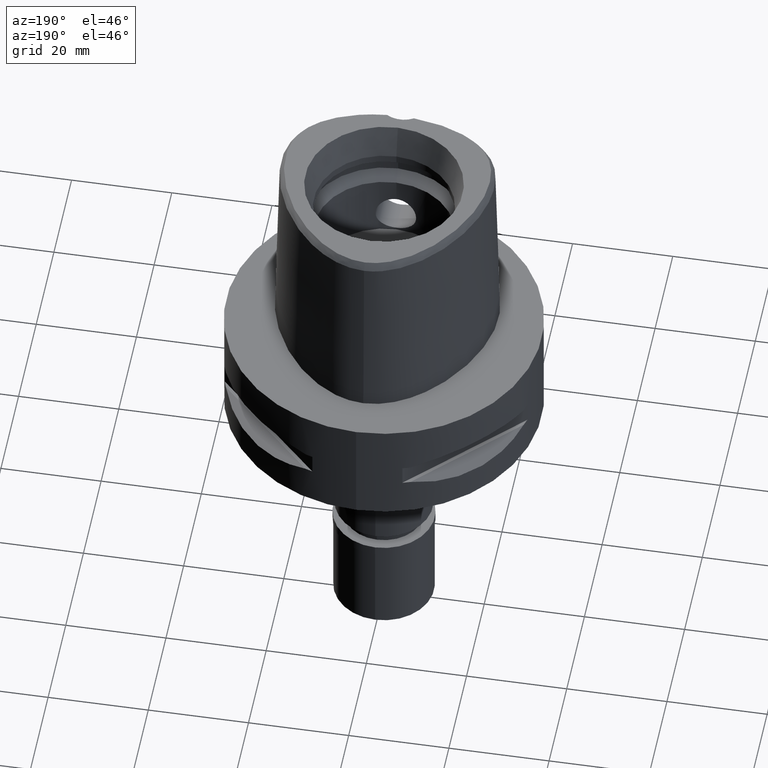
[diagram: clean part render]
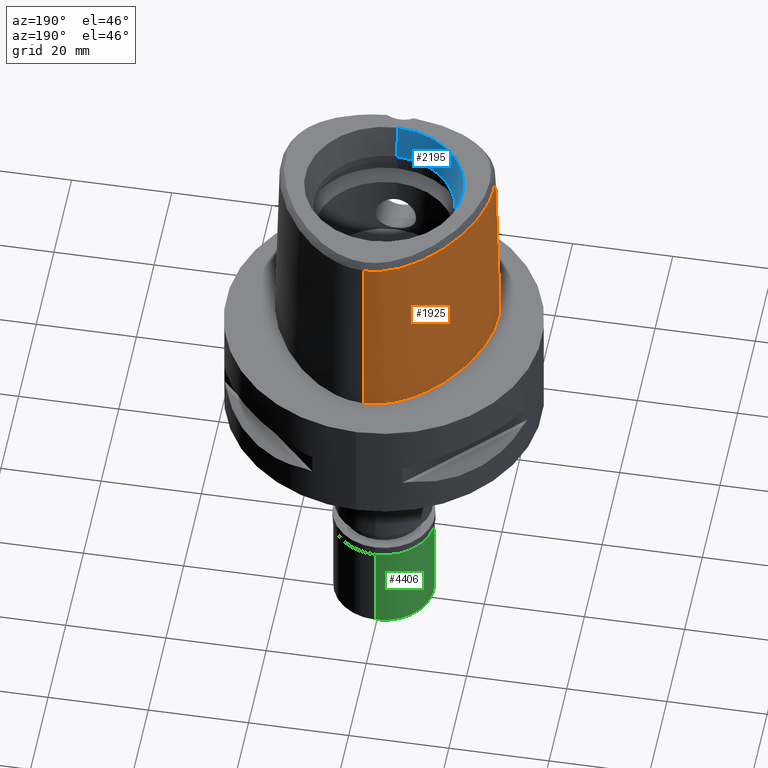
[diagram: same view with three faces highlighted in distinct colors, each labeled with its STEP entity id]
A machine part, auxiliary view with three faces highlighted in distinct colors.
Their STEP definitions:

[orange] entity #1925 — the highlighted face is a freeform B-spline surface patch.
#27 = CARTESIAN_POINT ( 'NONE',  ( -1.853278688364999871, -20.08023918593000090, 24.59140458107000171 ) ) ;
#36 = CARTESIAN_POINT ( 'NONE',  ( 0.0000000000000000000, -20.18628283968999781, 19.55000000000000071 ) ) ;
#47 = CARTESIAN_POINT ( 'NONE',  ( -3.762869731536669260, -20.12247555764862028, 14.00220521679823094 ) ) ;
#49 = CARTESIAN_POINT ( 'NONE',  ( -4.757642277158728561, 21.67478330407271514, 36.52186244848003582 ) ) ;
#69 = CARTESIAN_POINT ( 'NONE',  ( -4.049869973556383229, -20.05130082554616422, 15.54461703030602315 ) ) ;
#96 = CARTESIAN_POINT ( 'NONE',  ( -3.925548520621262139, -20.09219379504578740, 14.49438712539528318 ) ) ;
#120 = CARTESIAN_POINT ( 'NONE',  ( -3.038214366441517988, -20.22289421842112489, 12.82055521037658430 ) ) ;
#181 = VERTEX_POINT ( 'NONE', #536 ) ;
#189 = CARTESIAN_POINT ( 'NONE',  ( -14.42198652155999916, 15.65278600381999752, -0.7304377598339000244 ) ) ;
#216 = CARTESIAN_POINT ( 'NONE',  ( -18.08416038491999700, 10.44089487314000131, -0.7304377598339000244 ) ) ;
#239 = CARTESIAN_POINT ( 'NONE',  ( -17.25769840289000001, 9.963736469872001678, 37.25232575153000170 ) ) ;
#262 = CARTESIAN_POINT ( 'NONE',  ( 0.7234356452536000459, 23.47140592868999676, -0.7304377598339000244 ) ) ;
#265 = CARTESIAN_POINT ( 'NONE',  ( -21.62788395401999963, -4.104079498751000088, 24.59140458107000171 ) ) ;
#284 = CARTESIAN_POINT ( 'NONE',  ( -18.58171406734000186, -14.18198046689000158, -0.7304377598339000244 ) ) ;
#285 = CARTESIAN_POINT ( 'NONE',  ( -22.24453906986831342, -4.100468750050696443, 3.459377806728971411E-07 ) ) ;
#304 = CARTESIAN_POINT ( 'NONE',  ( -2.797619229957165388, -20.10241173800437764, 18.42863864459393142 ) ) ;
#309 = CARTESIAN_POINT ( 'NONE',  ( 0.6718639819605999319, -20.05378883203000129, 24.59140458107000171 ) ) ;
#342 = CARTESIAN_POINT ( 'NONE',  ( -1.531405610645092619, -20.16033321293324931, 19.24931070735947358 ) ) ;
#385 = CARTESIAN_POINT ( 'NONE',  ( -2.919852893003461958, -20.23621320773177246, 12.69332253371329067 ) ) ;
#401 = CARTESIAN_POINT ( 'NONE',  ( 6.819050439105700543E-09, -19.98212988583619065, 27.71666688228206610 ) ) ;
#408 = CARTESIAN_POINT ( 'NONE',  ( -1.680927265745976618, -20.33952493926734206, 11.81518855684048752 ) ) ;
#409 = EDGE_CURVE ( 'NONE', #2981, #2292, #1281, .T. ) ;
#437 = CARTESIAN_POINT ( 'NONE',  ( -3.921184627122715316, -20.04104756848809643, 16.54728570683239752 ) ) ;
#439 = CARTESIAN_POINT ( 'NONE',  ( -1.479182330943000172E-11, 22.56201468012000078, 36.52186680743999858 ) ) ;
#450 = EDGE_LOOP ( 'NONE', ( #1989, #1747, #4038, #4217, #3665, #1895, #1190, #470 ) ) ;
#459 = CARTESIAN_POINT ( 'NONE',  ( -3.998376839061489996, -20.04197868732341803, 16.15801345790673693 ) ) ;
#470 = ORIENTED_EDGE ( 'NONE', *, *, #3107, .T. ) ;
#484 = CARTESIAN_POINT ( 'NONE',  ( -1.596117655116225942, -20.34441856857911546, 11.77773549791970353 ) ) ;
#487 = CARTESIAN_POINT ( 'NONE',  ( -20.67704215115622191, -8.734985316449101589, 36.52186244848003582 ) ) ;
#536 = CARTESIAN_POINT ( 'NONE',  ( -1.479182330943000172E-11, 22.56201468012000078, 36.52186680743999858 ) ) ;
#552 = CARTESIAN_POINT ( 'NONE',  ( -0.5985508168393000039, 23.20171274540999562, 11.93048341062000084 ) ) ;
#575 = CARTESIAN_POINT ( 'NONE',  ( -0.6149727127929999204, 23.51889465129999834, -0.7304377598339000244 ) ) ;
#576 = CARTESIAN_POINT ( 'NONE',  ( -2.564517725179087826, 23.29328124148293355, 3.459377806728971411E-07 ) ) ;
#597 = CARTESIAN_POINT ( 'NONE',  ( -2.438150592735999656, 22.68791634200999852, 24.59140458107000171 ) ) ;
#621 = CARTESIAN_POINT ( 'NONE',  ( -20.36546124687000159, -11.75800453307999938, -0.7304377598339000244 ) ) ;
#646 = CARTESIAN_POINT ( 'NONE',  ( -19.66427014789000083, -12.83600704790999991, -0.7304377598339000244 ) ) ;
#661 = CARTESIAN_POINT ( 'NONE',  ( -1.488598210213442075, -20.16175034823961809, 19.26657871304125180 ) ) ;
#683 = CARTESIAN_POINT ( 'NONE',  ( -2.851801149372419353, -20.09935072000362055, 18.37572088573532980 ) ) ;
#691 = CARTESIAN_POINT ( 'NONE',  ( -14.52531262031000026, -16.95413745994000010, 11.93048341062000084 ) ) ;
#711 = CARTESIAN_POINT ( 'NONE',  ( 0.6779535336779000110, -20.37023519194999821, 11.93048341062000084 ) ) ;
#727 = CARTESIAN_POINT ( 'NONE',  ( 0.6657744302432999639, -19.73734247210999726, 37.25232575153000170 ) ) ;
#736 = EDGE_CURVE ( 'NONE', #4610, #181, #4188, .T. ) ;
#749 = CARTESIAN_POINT ( 'NONE',  ( 0.6840430853952000900, -20.68668155186999869, -0.7304377598339000244 ) ) ;
#769 = CARTESIAN_POINT ( 'NONE',  ( -2.886300266832447114, -20.23990940497640523, 12.65889672335314842 ) ) ;
#771 = CARTESIAN_POINT ( 'NONE',  ( -21.32871527670028300, -4.105831244393650437, 36.52186244848003582 ) ) ;
#796 = CARTESIAN_POINT ( 'NONE',  ( -18.90964971338317113, -12.28759719904896031, 36.52186244848003582 ) ) ;
#817 = CARTESIAN_POINT ( 'NONE',  ( -1.559114742816756660, -20.34646573754459808, 11.76212138692104148 ) ) ;
#842 = CARTESIAN_POINT ( 'NONE',  ( -1.641525461541228470, -20.34184561437434624, 11.79739200675999022 ) ) ;
#851 = CARTESIAN_POINT ( 'NONE',  ( -3.704239276368590961, -19.64128040965313460, 33.37395414949332917 ) ) ;
#869 = CARTESIAN_POINT ( 'NONE',  ( -3.843226529735412456, -20.04326967009407667, 16.80669536902188099 ) ) ;
#905 = DIRECTION ( 'NONE',  ( 2.208678029385959910E-12, 0.02499051290944955331, -0.9996876883629820520 ) ) ;
#910 = CARTESIAN_POINT ( 'NONE',  ( -20.36913766326999919, -10.35391839962999860, 24.59140458107000171 ) ) ;
#926 = B_SPLINE_CURVE_WITH_KNOTS ( 'NONE', 3,
 ( #1219, #3115, #851, #1532 ),
 .UNSPECIFIED., .F., .F.,
 ( 4, 4 ),
 ( 0.0000000000000000000, 1.000000000000000000 ),
 .UNSPECIFIED. ) ;
#935 = CARTESIAN_POINT ( 'NONE',  ( -7.580410841173000236, 21.33037926464000122, -0.7304377598339000244 ) ) ;
#962 = CARTESIAN_POINT ( 'NONE',  ( -21.36961496224000001, -0.3886497988670999937, 24.59140458107000171 ) ) ;
#963 = CARTESIAN_POINT ( 'NONE',  ( -20.93173251419439396, -10.60431640273427334, 3.459377806728971411E-07 ) ) ;
#987 = CARTESIAN_POINT ( 'NONE',  ( -10.75753573945000063, 19.18839675907000242, -0.7304377598339000244 ) ) ;
#1011 = CARTESIAN_POINT ( 'NONE',  ( 0.4823619558380999872, 23.48603818414999722, -0.7304377598339000244 ) ) ;
#1014 = CARTESIAN_POINT ( 'NONE',  ( -17.53318573023000226, 10.12278927095999848, 24.59140458107000171 ) ) ;
#1031 = CARTESIAN_POINT ( 'NONE',  ( -1.541591375113084306, -20.15999082594547076, 19.24513028913992940 ) ) ;
#1051 = CARTESIAN_POINT ( 'NONE',  ( -1.544789731432242519, -20.15988288216005131, 19.24381163818127760 ) ) ;
#1077 = CARTESIAN_POINT ( 'NONE',  ( -6.288476574467999569, -20.00290568970999772, 11.93048341062000084 ) ) ;
#1111 = CARTESIAN_POINT ( 'NONE',  ( -0.2465851577510960457, -20.18628283968999426, 19.54999999999999005 ) ) ;
#1113 = CARTESIAN_POINT ( 'NONE',  ( -17.27359245833573453, 9.972912913898301923, 36.52186244848003582 ) ) ;
#1115 = CARTESIAN_POINT ( 'NONE',  ( -1.886862292337999847, -20.71358860112999878, -0.7304377598339000244 ) ) ;
#1134 = CARTESIAN_POINT ( 'NONE',  ( -2.088594375141250126, -20.31247532857663174, 12.02749352400660676 ) ) ;
#1159 = CARTESIAN_POINT ( 'NONE',  ( -3.719814258556724429, -20.04919641151679244, 17.10180542792554093 ) ) ;
#1183 = CARTESIAN_POINT ( 'NONE',  ( -2.657670403633153544, -20.26493184025507333, 12.42775711742306122 ) ) ;
#1190 = ORIENTED_EDGE ( 'NONE', *, *, #1725, .T. ) ;
#1209 = CARTESIAN_POINT ( 'NONE',  ( -3.867989229626766168, -20.10354487733047790, 14.29757269249988560 ) ) ;
#1219 = CARTESIAN_POINT ( 'NONE',  ( -3.637738201363999835, -19.56971413236999879, 36.52186244848000030 ) ) ;
#1222 = CARTESIAN_POINT ( 'NONE',  ( -3.637738201363999835, -19.56971413236999879, 36.52186244848000030 ) ) ;
#1235 = CARTESIAN_POINT ( 'NONE',  ( -3.756308786277231082, -20.12359860274360557, 13.98582625460690210 ) ) ;
#1243 = CARTESIAN_POINT ( 'NONE',  ( 0.7042335258437000256, 23.15549817335000071, 11.93048341062000084 ) ) ;
#1281 = B_SPLINE_CURVE_WITH_KNOTS ( 'NONE', 3,
 ( #1880, #401, #3381, #36 ),
 .UNSPECIFIED., .F., .F.,
 ( 4, 4 ),
 ( 0.0000000000000000000, 1.000000000000000000 ),
 .UNSPECIFIED. ) ;
#1300 = CARTESIAN_POINT ( 'NONE',  ( -5.105252916852999867, 22.54305024427000248, -0.7304377598339000244 ) ) ;
#1301 = B_SPLINE_CURVE_WITH_KNOTS ( 'NONE', 3,
 ( #2533, #4710, #576, #2510, #2061, #3250, #3657, #2847, #4002, #2135, #285, #3173, #1768, #963, #4023, #3953, #4664, #3276, #4338, #3563, #4759, #1402, #4687 ),
 .UNSPECIFIED., .F., .F.,
 ( 4, 1, 1, 1, 1, 1, 1, 1, 1, 1, 1, 1, 1, 1, 1, 1, 1, 1, 1, 1, 4 ),
 ( 0.0000000000000000000, 0.04166666666767999960, 0.08333333333429000789, 0.1250000000009000023, 0.1666666666676000219, 0.2500000000006999956, 0.3333333333339000282, 0.4166666666672000363, 0.5000000000004000134, 0.5416666666671000607, 0.5833333333336000459, 0.6250000000002999823, 0.6458333333335000148, 0.6666666666668999985, 0.6875000000001999512, 0.7083333333333999837, 0.7500000000001000311, 0.7916666666667000474, 0.8333333333333000637, 0.9166666666666000163, 1.000000000000000000 ),
 .UNSPECIFIED. ) ;
#1326 = CARTESIAN_POINT ( 'NONE',  ( -21.05621893438999592, -0.4440251903631000086, 37.25232575153000170 ) ) ;
#1348 = CARTESIAN_POINT ( 'NONE',  ( -21.44619289701000042, -6.759806545680999257, 24.59140458107000171 ) ) ;
#1370 = CARTESIAN_POINT ( 'NONE',  ( 0.4441906986747999886, 22.53710770256000018, 37.25232575153000170 ) ) ;
#1376 = CARTESIAN_POINT ( 'NONE',  ( -20.09084471766000135, -11.59945460541000095, 11.93048341062000084 ) ) ;
#1401 = CARTESIAN_POINT ( 'NONE',  ( -7.259695404687000142, 20.78233559042000067, 24.59140458107000171 ) ) ;
#1402 = CARTESIAN_POINT ( 'NONE',  ( -2.113823672550860344, -20.67499999135608846, 3.459377806728971411E-07 ) ) ;
#1412 = CARTESIAN_POINT ( 'NONE',  ( 2.041042029990999821E-08, -19.88004246002000031, 31.80000004972000127 ) ) ;
#1476 = CARTESIAN_POINT ( 'NONE',  ( -0.5021874295596131521, -20.18408037859538240, 19.52742716791084732 ) ) ;
#1484 = CARTESIAN_POINT ( 'NONE',  ( -11.02138179061999956, -18.31230451130999981, 24.59140458107000171 ) ) ;
#1500 = CARTESIAN_POINT ( 'NONE',  ( -3.734194145856142732, -20.04849289885567032, 17.06791825620778980 ) ) ;
#1502 = CARTESIAN_POINT ( 'NONE',  ( -17.90324032097040075, -13.53935111955661164, 36.52186244848003582 ) ) ;
#1506 = CARTESIAN_POINT ( 'NONE',  ( -6.344715577052999933, -20.31619965165999631, -0.7304377598339000244 ) ) ;
#1526 = CARTESIAN_POINT ( 'NONE',  ( -3.624911790847527460, -20.05423397138093122, 17.30719681474948146 ) ) ;
#1532 = CARTESIAN_POINT ( 'NONE',  ( -3.736722311398999796, -19.67781602443999844, 31.80000000000000071 ) ) ;
#1550 = CARTESIAN_POINT ( 'NONE',  ( -3.956605912074919296, -20.08538212556008773, 14.62525231714301732 ) ) ;
#1575 = CARTESIAN_POINT ( 'NONE',  ( -3.794740221419424575, -20.11695184498548628, 14.08416059805531262 ) ) ;
#1577 = CARTESIAN_POINT ( 'NONE',  ( -10.91891098965127505, -18.03046406390346590, 36.52186244848003582 ) ) ;
#1634 = CARTESIAN_POINT ( 'NONE',  ( 0.0000000000000000000, -20.18628283968999781, 19.55000000000000071 ) ) ;
#1644 = EDGE_CURVE ( 'NONE', #4610, #4451, #926, .T. ) ;
#1667 = CARTESIAN_POINT ( 'NONE',  ( -4.750826139238999879, 21.65775785507999984, 37.25232575153000170 ) ) ;
#1693 = CARTESIAN_POINT ( 'NONE',  ( -21.99640701793999753, -0.2778990158753000261, -0.7304377598339000244 ) ) ;
#1716 = CARTESIAN_POINT ( 'NONE',  ( -22.07548129310999840, -6.850245535772000238, -0.7304377598339000244 ) ) ;
#1725 = EDGE_CURVE ( 'NONE', #181, #4249, #4228, .T. ) ;
#1742 = CARTESIAN_POINT ( 'NONE',  ( -2.503210899463999883, 22.99958936394000020, 11.93048341062000084 ) ) ;
#1747 = ORIENTED_EDGE ( 'NONE', *, *, #2566, .F. ) ;
#1767 = CARTESIAN_POINT ( 'NONE',  ( -13.69241965850000042, 15.03666380483999987, 37.25232575153000170 ) ) ;
#1768 = CARTESIAN_POINT ( 'NONE',  ( -21.55524825177849024, -8.996025388152483870, 3.459377806728971411E-07 ) ) ;
#1777 = VERTEX_POINT ( 'NONE', #3947 ) ;
#1784 = CARTESIAN_POINT ( 'NONE',  ( -2.857284742604270456, -20.09903790442441007, 18.37026989035636504 ) ) ;
#1788 = EDGE_CURVE ( 'NONE', #3873, #1777, #4705, .T. ) ;
#1804 = CARTESIAN_POINT ( 'NONE',  ( -2.575295375000640430, -20.11439068779958461, 18.62714785978438670 ) ) ;
#1809 = CARTESIAN_POINT ( 'NONE',  ( 0.4439216892547000470, -19.74161834710000107, 37.25232575153000170 ) ) ;
#1821 = CARTESIAN_POINT ( 'NONE',  ( -2.734671533124013010, -20.10590200644962522, 18.48802280310898993 ) ) ;
#1843 = CARTESIAN_POINT ( 'NONE',  ( -2.505990926055988943, -20.11793067865155393, 18.68270516453623031 ) ) ;
#1852 = CARTESIAN_POINT ( 'NONE',  ( -3.736722311398999796, -19.67781602443999844, 31.80000000000000071 ) ) ;
#1866 = CARTESIAN_POINT ( 'NONE',  ( -4.043905190080966605, -20.04716283165503299, 15.73781060819240096 ) ) ;
#1870 = CARTESIAN_POINT ( 'NONE',  ( 0.4479792485152000459, -20.05810146034000141, 24.59140458107000171 ) ) ;
#1880 = CARTESIAN_POINT ( 'NONE',  ( 2.041042029990999821E-08, -19.88004246002000031, 31.80000004972000127 ) ) ;
#1886 = CARTESIAN_POINT ( 'NONE',  ( -3.727469197230223408, -20.04882030233529022, 17.08382935602026009 ) ) ;
#1895 = ORIENTED_EDGE ( 'NONE', *, *, #736, .T. ) ;
#1913 = CARTESIAN_POINT ( 'NONE',  ( -3.367806596831433019, -20.18192081941509031, 13.25016435530160308 ) ) ;
#1925 = ADVANCED_FACE ( 'NONE', ( #3604 ), #3443, .T. ) ;
#1938 = CARTESIAN_POINT ( 'NONE',  ( -3.665886788444425726, -20.13895792717979916, 13.76422644718201838 ) ) ;
#1965 = CARTESIAN_POINT ( 'NONE',  ( -0.5057846355308602826, -20.38876923347999792, 11.44999999999999929 ) ) ;
#1968 = CARTESIAN_POINT ( 'NONE',  ( -21.07430010672997867, -0.4408303445193214043, 36.52186244848003582 ) ) ;
#1989 = ORIENTED_EDGE ( 'NONE', *, *, #1788, .F. ) ;
#2003 = VECTOR ( 'NONE', #2743, 1000.000000000000114 ) ;
#2031 = CARTESIAN_POINT ( 'NONE',  ( -1.479182330943000172E-11, 22.56201468012000078, 36.52186680743999858 ) ) ;
#2036 = CARTESIAN_POINT ( 'NONE',  ( -18.12052898234000153, -13.74516021884999972, 24.59140458107000171 ) ) ;
#2060 = CARTESIAN_POINT ( 'NONE',  ( -21.13154869895999965, -6.714587050636000143, 37.25232575153000170 ) ) ;
#2061 = CARTESIAN_POINT ( 'NONE',  ( -7.571159429969791077, 21.31457030501186267, 3.459377806728971411E-07 ) ) ;
#2087 = CARTESIAN_POINT ( 'NONE',  ( -2.568271206191000022, 23.31126238587999921, -0.7304377598339000244 ) ) ;
#2091 = CARTESIAN_POINT ( 'NONE',  ( -4.467522189395124244, -19.48130287050788567, 36.52186244848003582 ) ) ;
#2099 = CARTESIAN_POINT ( 'NONE',  ( 2.041042029990999821E-08, -19.88004246002000031, 31.80000004972000127 ) ) ;
#2111 = CARTESIAN_POINT ( 'NONE',  ( -7.099337686444999740, 20.50831375331000217, 37.25232575153000170 ) ) ;
#2134 = CARTESIAN_POINT ( 'NONE',  ( -19.40779766750000235, -12.64961925905999962, 11.93048341062000084 ) ) ;
#2135 = CARTESIAN_POINT ( 'NONE',  ( -21.97832646930871903, -0.2810937515131003983, 3.459377806728971411E-07 ) ) ;
#2177 = CARTESIAN_POINT ( 'NONE',  ( -3.268864241398726111, -20.07506891068213761, 17.90555350365073650 ) ) ;
#2183 = CARTESIAN_POINT ( 'NONE',  ( -16.77374381459999952, -15.44292471121999988, 11.93048341062000084 ) ) ;
#2259 = CARTESIAN_POINT ( 'NONE',  ( -3.836467929648135655, -20.10950381298684064, 14.19903930726688657 ) ) ;
#2262 = CARTESIAN_POINT ( 'NONE',  ( -13.70645028111231056, 15.04851272300578380, 36.52186244848003582 ) ) ;
#2284 = CARTESIAN_POINT ( 'NONE',  ( -3.544063161370002213, -20.05881339563959997, 17.46364446448036745 ) ) ;
#2287 = CARTESIAN_POINT ( 'NONE',  ( -19.88562090098154655, 4.345879983791697043, 36.52186244848003582 ) ) ;
#2292 = VERTEX_POINT ( 'NONE', #1634 ) ;
#2313 = CARTESIAN_POINT ( 'NONE',  ( -1.038054083033169483, -20.37481344100646297, 11.54609019373683942 ) ) ;
#2344 = CARTESIAN_POINT ( 'NONE',  ( -2.426701961760798998, -20.28591677970951324, 12.24642837061528944 ) ) ;
#2411 = CARTESIAN_POINT ( 'NONE',  ( -21.31039814733000171, -4.105938498107000179, 37.25232575153000170 ) ) ;
#2436 = CARTESIAN_POINT ( 'NONE',  ( -10.14358063878999872, 18.45723403766999837, 37.25232575153000170 ) ) ;
#2446 = CARTESIAN_POINT ( 'NONE',  ( -3.736722311398999796, -19.67781602443999844, 31.80000000000000071 ) ) ;
#2459 = CARTESIAN_POINT ( 'NONE',  ( -10.55288403922999940, 18.94467585193000048, 11.93048341062000084 ) ) ;
#2485 = CARTESIAN_POINT ( 'NONE',  ( -20.94844326049000216, -10.61175397080999971, -0.7304377598339000244 ) ) ;
#2506 = CARTESIAN_POINT ( 'NONE',  ( 0.4569144510625000044, 22.85341786308999801, 24.59140458107000171 ) ) ;
#2509 = CARTESIAN_POINT ( 'NONE',  ( -13.93560861286000119, 15.24203787116999997, 24.59140458107000171 ) ) ;
#2510 = CARTESIAN_POINT ( 'NONE',  ( -5.098437014055448913, 22.52602538256833142, 3.459377806728971411E-07 ) ) ;
#2530 = CARTESIAN_POINT ( 'NONE',  ( 0.4520368077757999647, -20.37458457356999730, 11.93048341062000084 ) ) ;
#2533 = CARTESIAN_POINT ( 'NONE',  ( 6.589842200291999297E-11, 23.47499999998000320, 1.576886769308999875E-13 ) ) ;
#2550 = CARTESIAN_POINT ( 'NONE',  ( -1.835546471015090830, -20.14908986358940624, 19.11988503337457956 ) ) ;
#2566 = EDGE_CURVE ( 'NONE', #2292, #3873, #4273, .T. ) ;
#2569 = CARTESIAN_POINT ( 'NONE',  ( -1.317010552601458162, -20.16708013202131156, 19.33098337469463956 ) ) ;
#2573 = CARTESIAN_POINT ( 'NONE',  ( -14.21104791656000010, -16.40237691572999879, 37.25232575153000170 ) ) ;
#2587 = CARTESIAN_POINT ( 'NONE',  ( 0.0000000000000000000, -20.18628283968999781, 19.55000000000000071 ) ) ;
#2634 = CARTESIAN_POINT ( 'NONE',  ( -3.772620537503822202, -20.12079984608469374, 14.02678001246963824 ) ) ;
#2658 = CARTESIAN_POINT ( 'NONE',  ( -3.145668487415303360, -20.21028341547467022, 12.94648834099231571 ) ) ;
#2661 = CARTESIAN_POINT ( 'NONE',  ( -14.22011356156464146, -16.41829364185904439, 36.52186244848003582 ) ) ;
#2680 = CARTESIAN_POINT ( 'NONE',  ( -1.814050643340265889, -20.33132821242286781, 11.87847033704504796 ) ) ;
#2709 = CARTESIAN_POINT ( 'NONE',  ( -1.977192395453438722, -20.32050836814658012, 11.96330131670445240 ) ) ;
#2743 = DIRECTION ( 'NONE',  ( -1.017995285158978104E-12, -0.02499051295360945474, -0.9996876883618780463 ) ) ;
#2756 = EDGE_CURVE ( 'NONE', #2981, #4451, #4337, .T. ) ;
#2801 = CARTESIAN_POINT ( 'NONE',  ( -0.5657070249320000910, 22.56734893363000083, 37.25232575153000170 ) ) ;
#2810 = CARTESIAN_POINT ( 'NONE',  ( -1.251533273950275138, -19.88005341379962942, 31.80000012753032124 ) ) ;
#2824 = CARTESIAN_POINT ( 'NONE',  ( -21.57281239455999966, -9.001246195760000290, -0.7304377598339000244 ) ) ;
#2846 = CARTESIAN_POINT ( 'NONE',  ( -14.17879756720999929, 15.44741193750000008, 11.93048341062000084 ) ) ;
#2847 = CARTESIAN_POINT ( 'NONE',  ( -18.06826687773854090, 10.43171874565434898, 3.459377806728971411E-07 ) ) ;
#2869 = CARTESIAN_POINT ( 'NONE',  ( 0.6658292870238999850, 22.52368266267000152, 37.25232575153000170 ) ) ;
#2875 = CARTESIAN_POINT ( 'NONE',  ( -19.81622818843999667, -11.44090467774999986, 24.59140458107000171 ) ) ;
#2896 = CARTESIAN_POINT ( 'NONE',  ( -21.26836739720000224, -8.910752240088001486, 11.93048341062000084 ) ) ;
#2936 = CARTESIAN_POINT ( 'NONE',  ( -2.304133813497709848, -20.12795213471254385, 18.83494799252683194 ) ) ;
#2940 = CARTESIAN_POINT ( 'NONE',  ( -14.68244497218999989, -17.23001773205000120, -0.7304377598339000244 ) ) ;
#2954 = CARTESIAN_POINT ( 'NONE',  ( -2.177750445871723617, -20.13383508342666062, 18.91723245054120284 ) ) ;
#2973 = CARTESIAN_POINT ( 'NONE',  ( -0.8915815459160499890, -20.17747299531153971, 19.45285312132774891 ) ) ;
#2981 = VERTEX_POINT ( 'NONE', #1412 ) ;
#2993 = CARTESIAN_POINT ( 'NONE',  ( -4.047647246277453092, -20.04912797155685666, 15.64168586085738433 ) ) ;
#3021 = CARTESIAN_POINT ( 'NONE',  ( -4.029432876846470002, -20.06721427321517126, 15.01438070517306933 ) ) ;
#3048 = CARTESIAN_POINT ( 'NONE',  ( -3.551080577974869534, -20.15710215592003607, 13.53003663866469708 ) ) ;
#3075 = CARTESIAN_POINT ( 'NONE',  ( -3.649891930217442848, -20.05285191509302223, 17.25608100366854103 ) ) ;
#3077 = CARTESIAN_POINT ( 'NONE',  ( -7.108589416785910053, 20.52412325828585082, 36.52186244848003582 ) ) ;
#3107 = EDGE_CURVE ( 'NONE', #4249, #1777, #1301, .T. ) ;
#3109 = CARTESIAN_POINT ( 'NONE',  ( -0.7901461696978953064, 22.56201478746963573, 36.52186244848003582 ) ) ;
#3115 = CARTESIAN_POINT ( 'NONE',  ( -3.671249123513567802, -19.60525173594972514, 34.94790829898666829 ) ) ;
#3172 = CARTESIAN_POINT ( 'NONE',  ( -22.26285556739000171, -4.100361500036999729, -0.7304377598339000244 ) ) ;
#3173 = CARTESIAN_POINT ( 'NONE',  ( -22.05732873462538990, -6.847636717514570925, 3.459377806728971411E-07 ) ) ;
#3199 = CARTESIAN_POINT ( 'NONE',  ( -20.16779728675000172, 4.447573625816999332, 24.59140458107000171 ) ) ;
#3224 = CARTESIAN_POINT ( 'NONE',  ( -20.46725041888999996, 4.555493640248000631, 11.93048341062000084 ) ) ;
#3227 = CARTESIAN_POINT ( 'NONE',  ( -7.300578999876314867, -19.07170748891964251, 36.52186244848003582 ) ) ;
#3249 = CARTESIAN_POINT ( 'NONE',  ( -21.76083709506000474, -6.805026040726000147, 11.93048341062000084 ) ) ;
#3250 = CARTESIAN_POINT ( 'NONE',  ( -10.74572890499939959, 19.17433593084498966, 3.459377806728971411E-07 ) ) ;
#3275 = CARTESIAN_POINT ( 'NONE',  ( -18.89485270670000006, -12.27684368134999993, 37.25232575153000170 ) ) ;
#3276 = CARTESIAN_POINT ( 'NONE',  ( -16.95889172056334004, -15.67838866504611417, 3.459377806728971411E-07 ) ) ;
#3313 = CARTESIAN_POINT ( 'NONE',  ( -10.91263703431999943, -18.01320788593999822, 37.25232575153000170 ) ) ;
#3348 = CARTESIAN_POINT ( 'NONE',  ( -2.842759848269331702, -20.09986491614857940, 18.38465887988232694 ) ) ;
#3368 = CARTESIAN_POINT ( 'NONE',  ( -1.563918787023078405, -20.34620195249980057, 11.76413240214164624 ) ) ;
#3381 = CARTESIAN_POINT ( 'NONE',  ( 6.839024713208919302E-09, -20.08420636276385807, 23.63333344114127144 ) ) ;
#3389 = CARTESIAN_POINT ( 'NONE',  ( -1.576781487948359706, -20.34549244179115135, 11.76954308155220197 ) ) ;
#3421 = CARTESIAN_POINT ( 'NONE',  ( -2.890992372355471129, -20.23939416746568654, 12.66367639792781929 ) ) ;
#3443 = B_SPLINE_SURFACE_WITH_KNOTS ( 'NONE', 3, 3, ( 
 ( #262, #1243, #4729, #2869 ),
 ( #1011, #4360, #2506, #1370 ),
 ( #575, #552, #3586, #2801 ),
 ( #2087, #1742, #597, #4663 ),
 ( #1300, #4758, #4286, #1667 ),
 ( #935, #3562, #1401, #2111 ),
 ( #987, #2459, #4312, #2436 ),
 ( #189, #2846, #2509, #1767 ),
 ( #216, #3609, #1014, #239 ),
 ( #4685, #3224, #3199, #4001 ),
 ( #1693, #4709, #962, #1326 ),
 ( #3172, #3930, #265, #2411 ),
 ( #1716, #3249, #1348, #2060 ),
 ( #2824, #2896, #3952, #4336 ),
 ( #2485, #3979, #910, #4734 ),
 ( #621, #1376, #2875, #4366 ),
 ( #646, #2134, #3632, #3275 ),
 ( #284, #3902, #2036, #3539 ),
 ( #4778, #2183, #4798, #4045 ),
 ( #2940, #691, #3735, #2573 ),
 ( #3676, #4062, #1484, #3313 ),
 ( #1506, #1077, #4440, #4476 ),
 ( #1115, #4458, #27, #4102 ),
 ( #4391, #2530, #1870, #1809 ),
 ( #749, #711, #309, #727 ) ),
 .UNSPECIFIED., .F., .F., .F.,
 ( 4, 1, 1, 1, 1, 1, 1, 1, 1, 1, 1, 1, 1, 1, 1, 1, 1, 1, 1, 1, 1, 1, 4 ),
 ( 4, 4 ),
 ( -0.01173777939057000022, 0.0000000000000000000, 0.04166666666767999960, 0.08333333333429000789, 0.1250000000009000023, 0.1666666666676000219, 0.2500000000006999956, 0.3333333333339000282, 0.4166666666672000363, 0.5000000000004000134, 0.5416666666671000607, 0.5833333333336000459, 0.6250000000002999823, 0.6458333333335000148, 0.6666666666668999985, 0.6875000000001999512, 0.7083333333333999837, 0.7500000000001000311, 0.7916666666667000474, 0.8333333333333000637, 0.9166666666666000163, 1.000000000000000000, 1.008985696609000060 ),
 ( -7.189182096855999434E-10, 1.000000036665000147 ),
 .UNSPECIFIED. ) ;
#3446 = CARTESIAN_POINT ( 'NONE',  ( -2.902558347348344281, -20.23812146664878497, 12.67551358421966512 ) ) ;
#3472 = CARTESIAN_POINT ( 'NONE',  ( -1.661174828071999997E-12, -20.38876923348000147, 11.44999999999999929 ) ) ;
#3475 = CARTESIAN_POINT ( 'NONE',  ( -20.09619618741146141, -10.23243843868293901, 36.52186244848003582 ) ) ;
#3539 = CARTESIAN_POINT ( 'NONE',  ( -17.88993643983999959, -13.52675009483999879, 37.25232575153000170 ) ) ;
#3562 = CARTESIAN_POINT ( 'NONE',  ( -7.420053122929999745, 21.05635742753000272, 11.93048341062000084 ) ) ;
#3563 = CARTESIAN_POINT ( 'NONE',  ( -11.23259756429891887, -18.89324217933711836, 3.459377806728971411E-07 ) ) ;
#3586 = CARTESIAN_POINT ( 'NONE',  ( -0.5821289208857000075, 22.88453083952000000, 24.59140458107000171 ) ) ;
#3604 = FACE_OUTER_BOUND ( 'NONE', #450, .T. ) ;
#3609 = CARTESIAN_POINT ( 'NONE',  ( -17.80867305758000185, 10.28184207205000078, 11.93048341062000084 ) ) ;
#3632 = CARTESIAN_POINT ( 'NONE',  ( -19.15132518710000298, -12.46323147020000022, 24.59140458107000171 ) ) ;
#3649 = CARTESIAN_POINT ( 'NONE',  ( -1.657687864406249378, -20.15606762905842331, 19.19719617125366895 ) ) ;
#3657 = CARTESIAN_POINT ( 'NONE',  ( -14.40795638293354664, 15.64093749438234049, 3.459377806728971411E-07 ) ) ;
#3665 = ORIENTED_EDGE ( 'NONE', *, *, #1644, .F. ) ;
#3676 = CARTESIAN_POINT ( 'NONE',  ( -11.23887130320999894, -18.91049776204999944, -0.7304377598339000244 ) ) ;
#3710 = CARTESIAN_POINT ( 'NONE',  ( -1.537517288304564467, -20.16012794205365211, 19.24680469715476150 ) ) ;
#3729 = CARTESIAN_POINT ( 'NONE',  ( -3.285318014990150193, -20.19277196326118329, 13.13139680330103332 ) ) ;
#3735 = CARTESIAN_POINT ( 'NONE',  ( -14.36818026843000062, -16.67825718783999989, 24.59140458107000171 ) ) ;
#3757 = CARTESIAN_POINT ( 'NONE',  ( -4.036688053209431359, -20.04559746718236113, 15.83445754933458716 ) ) ;
#3759 = CARTESIAN_POINT ( 'NONE',  ( -2.376843896520026256, 22.39422508474110174, 36.52186244848002872 ) ) ;
#3779 = CARTESIAN_POINT ( 'NONE',  ( -3.701411487239769205, -20.05012138691577661, 17.14416751016413087 ) ) ;
#3782 = CARTESIAN_POINT ( 'NONE',  ( -10.15538788053053487, 18.47129535093841213, 36.52186244848003582 ) ) ;
#3801 = CARTESIAN_POINT ( 'NONE',  ( 6.589842200291999297E-11, 23.47499999998000320, 1.576886769308999875E-13 ) ) ;
#3809 = CARTESIAN_POINT ( 'NONE',  ( -4.017503746231673389, -20.04299977214257211, 16.02821663542249553 ) ) ;
#3837 = CARTESIAN_POINT ( 'NONE',  ( -3.752274953730809770, -20.12428589694020076, 13.97586724470696851 ) ) ;
#3873 = VERTEX_POINT ( 'NONE', #4319 ) ;
#3902 = CARTESIAN_POINT ( 'NONE',  ( -18.35112152483999992, -13.96357034286999976, 11.93048341062000084 ) ) ;
#3930 = CARTESIAN_POINT ( 'NONE',  ( -21.94536976071000112, -4.102220499393999908, 11.93048341062000084 ) ) ;
#3933 = CARTESIAN_POINT ( 'NONE',  ( -3.637738201363999835, -19.56971413236999879, 36.52186244848000030 ) ) ;
#3947 = CARTESIAN_POINT ( 'NONE',  ( -1.332086229924000112E-11, -20.67499999999999716, 1.606492716632999857E-13 ) ) ;
#3952 = CARTESIAN_POINT ( 'NONE',  ( -20.96392239984000128, -8.820258284416000905, 24.59140458107000171 ) ) ;
#3953 = CARTESIAN_POINT ( 'NONE',  ( -19.64947365162905513, -12.82525390115283948, 3.459377806728971411E-07 ) ) ;
#3974 = CARTESIAN_POINT ( 'NONE',  ( -1.661174828071999997E-12, -20.38876923348000147, 11.44999999999999929 ) ) ;
#3979 = CARTESIAN_POINT ( 'NONE',  ( -20.65879046187999890, -10.48283618522000005, 11.93048341062000084 ) ) ;
#4001 = CARTESIAN_POINT ( 'NONE',  ( -19.86834415460000258, 4.339653611385999810, 37.25232575153000170 ) ) ;
#4002 = CARTESIAN_POINT ( 'NONE',  ( -20.74942740061855417, 4.657187497051560321, 3.459377806728971411E-07 ) ) ;
#4017 = CARTESIAN_POINT ( 'NONE',  ( -1.431459451083947121, -20.16358716637907378, 19.28887417091949175 ) ) ;
#4023 = CARTESIAN_POINT ( 'NONE',  ( -20.34961797806598582, -11.74885741753617552, 3.459377806728971411E-07 ) ) ;
#4038 = ORIENTED_EDGE ( 'NONE', *, *, #409, .F. ) ;
#4039 = CARTESIAN_POINT ( 'NONE',  ( -2.829203818685279703, -20.10063387241093835, 18.39799688263226329 ) ) ;
#4045 = CARTESIAN_POINT ( 'NONE',  ( -16.38077681911000028, -14.94316446819999911, 37.25232575153000170 ) ) ;
#4062 = CARTESIAN_POINT ( 'NONE',  ( -11.13012654691999970, -18.61140113668000140, 11.93048341062000084 ) ) ;
#4073 = CARTESIAN_POINT ( 'NONE',  ( -1.218750322455552704, -20.16976438148037687, 19.36287610421921102 ) ) ;
#4102 = CARTESIAN_POINT ( 'NONE',  ( -1.836486886379000039, -19.76356447833000018, 37.25232575153000170 ) ) ;
#4109 = VECTOR ( 'NONE', #905, 1000.000000000000114 ) ;
#4120 = CARTESIAN_POINT ( 'NONE',  ( -4.049380207498112227, -20.05052690380899705, 15.57773704771144985 ) ) ;
#4143 = CARTESIAN_POINT ( 'NONE',  ( -2.959823640834293723, -20.23176614975042042, 12.73524659798689740 ) ) ;
#4145 = CARTESIAN_POINT ( 'NONE',  ( -19.55745547455581956, -11.29150218116378568, 36.52186244848003582 ) ) ;
#4162 = CARTESIAN_POINT ( 'NONE',  ( -1.760325163371488255, -20.33472987466851833, 11.85210160548962577 ) ) ;
#4188 = B_SPLINE_CURVE_WITH_KNOTS ( 'NONE', 3,
 ( #3933, #2091, #3227, #1577, #2661, #4497, #1502, #796, #4145, #3475, #487, #4519, #771, #1968, #2287, #1113, #2262, #3782, #3077, #49, #3759, #3109, #439 ),
 .UNSPECIFIED., .F., .F.,
 ( 4, 1, 1, 1, 1, 1, 1, 1, 1, 1, 1, 1, 1, 1, 1, 1, 1, 1, 1, 1, 4 ),
 ( 0.0000000000000000000, 0.03580973941716571185, 0.1234633994701219151, 0.1672902294965474546, 0.2111170595229729940, 0.2549438895495037549, 0.2768573045626113727, 0.2987707195758241285, 0.3206841345891420225, 0.3425975496022496403, 0.3864243796287802901, 0.4302512096551006082, 0.4740780396816314246, 0.5617316997344824481, 0.6493853597874387207, 0.7370390198402897441, 0.8246926798930356295, 0.8685195099195662793, 0.9123463399460023382, 0.9561731699724383970, 1.000000000000000000 ),
 .UNSPECIFIED. ) ;
#4193 = CARTESIAN_POINT ( 'NONE',  ( -3.226590237818985241, -20.20026238342882507, 13.05132736174538977 ) ) ;
#4217 = ORIENTED_EDGE ( 'NONE', *, *, #2756, .T. ) ;
#4218 = CARTESIAN_POINT ( 'NONE',  ( -3.684684598259801991, -20.05099545835861719, 17.18117735821505931 ) ) ;
#4228 = LINE ( 'NONE', #2031, #4109 ) ;
#4249 = VERTEX_POINT ( 'NONE', #3801 ) ;
#4273 = B_SPLINE_CURVE_WITH_KNOTS ( 'NONE', 3,
 ( #2587, #1111, #1476, #2973, #4453, #4073, #2569, #4017, #661, #4385, #342, #3710, #1031, #1051, #3649, #2550, #2954, #2936, #1843, #1804, #4471, #1821, #304, #4039, #3348, #683, #1784, #4773, #2177, #4794, #2284, #1526, #3075, #4218, #3779, #1159, #1886, #4566, #1500, #869, #437, #459, #3809, #3757, #1866, #2993, #4120, #69, #4495, #3021, #1550, #96, #1209, #2259, #1575, #2634, #47, #1235, #3837, #1938, #3048, #1913, #4517, #4543, #3729, #4193, #2658, #120, #4143, #385, #3446, #3421, #769, #1183, #2344, #1134, #2709, #2680, #4162, #408, #842, #484, #3389, #3368, #817, #2313, #1965, #3472 ),
 .UNSPECIFIED., .F., .F.,
 ( 4, 2, 2, 1, 1, 1, 1, 1, 2, 2, 2, 2, 2, 1, 1, 1, 2, 2, 2, 2, 2, 1, 1, 2, 2, 2, 2, 1, 2, 2, 2, 2, 1, 1, 1, 2, 2, 2, 2, 2, 1, 1, 1, 1, 2, 2, 2, 2, 2, 1, 1, 2, 2, 4 ),
 ( 0.0000000000000000000, 0.06249999999996702638, 0.09374999999995053956, 0.1093749999999421435, 0.1171874999999377859, 0.1210937499999356348, 0.1230468749999343858, 0.1240234374999338723, 0.1245117187499334838, 0.1249999999999330813, 0.1874999999999535927, 0.2187499999999636402, 0.2343749999999686362, 0.2421874999999711064, 0.2460937499999725775, 0.2480468749999731326, 0.2490234374999734379, 0.2499999999999736877, 0.3124999999999789058, 0.3437499999999818479, 0.3593749999999832911, 0.3671874999999840683, 0.3710937499999840128, 0.3730468749999845124, 0.3749999999999849565, 0.4374999999999980571, 0.4687500000000050515, 0.4843750000000081046, 0.4921875000000096589, 0.5000000000000112133, 0.5625000000000220934, 0.5937500000000274225, 0.6093750000000303091, 0.6171875000000319744, 0.6210937500000330846, 0.6230468750000333067, 0.6250000000000336398, 0.6875000000000381917, 0.6953125000000385247, 0.7031250000000388578, 0.7187500000000394129, 0.7343750000000400791, 0.7421875000000403011, 0.7460937500000403011, 0.7480468750000399680, 0.7500000000000397460, 0.8125000000000336398, 0.8437500000000306422, 0.8593750000000291989, 0.8671875000000285327, 0.8710937500000280886, 0.8730468750000276446, 0.8750000000000273115, 1.000000000000000000 ),
 .UNSPECIFIED. ) ;
#4286 = CARTESIAN_POINT ( 'NONE',  ( -4.868968398443999313, 21.95285531813999924, 24.59140458107000171 ) ) ;
#4297 = CARTESIAN_POINT ( 'NONE',  ( -2.503154198993168489, -19.81241979316363810, 31.80000012753032124 ) ) ;
#4312 = CARTESIAN_POINT ( 'NONE',  ( -10.34823233900999995, 18.70095494479999942, 24.59140458107000171 ) ) ;
#4319 = CARTESIAN_POINT ( 'NONE',  ( -1.661174828071999997E-12, -20.38876923348000147, 11.44999999999999929 ) ) ;
#4336 = CARTESIAN_POINT ( 'NONE',  ( -20.65947740248000031, -8.729764328744000323, 37.25232575153000170 ) ) ;
#4337 = B_SPLINE_CURVE_WITH_KNOTS ( 'NONE', 3,
 ( #2099, #2810, #4297, #2446 ),
 .UNSPECIFIED., .F., .F.,
 ( 4, 4 ),
 ( 0.0000000000000000000, 1.000000000000000000 ),
 .UNSPECIFIED. ) ;
#4338 = CARTESIAN_POINT ( 'NONE',  ( -14.67337963990355121, -17.21410155496724670, 3.459377806728971411E-07 ) ) ;
#4360 = CARTESIAN_POINT ( 'NONE',  ( 0.4696382034502999958, 23.16972802361999939, 11.93048341062000084 ) ) ;
#4366 = CARTESIAN_POINT ( 'NONE',  ( -19.54161165921999910, -11.28235475007999966, 37.25232575153000170 ) ) ;
#4385 = CARTESIAN_POINT ( 'NONE',  ( -1.517141275306993942, -20.16080935534030516, 19.25511887988401938 ) ) ;
#4391 = CARTESIAN_POINT ( 'NONE',  ( 0.4560943670363000191, -20.69106768680000386, -0.7304377598339000244 ) ) ;
#4440 = CARTESIAN_POINT ( 'NONE',  ( -6.232237571882000005, -19.68961172775999913, 24.59140458107000171 ) ) ;
#4451 = VERTEX_POINT ( 'NONE', #1852 ) ;
#4453 = CARTESIAN_POINT ( 'NONE',  ( -1.022349182922354549, -20.17471991894326422, 19.42121903600282096 ) ) ;
#4458 = CARTESIAN_POINT ( 'NONE',  ( -1.870070490351999792, -20.39691389352999806, 11.93048341062000084 ) ) ;
#4471 = CARTESIAN_POINT ( 'NONE',  ( -2.681220268109088423, -20.10878144327418937, 18.53574255747164301 ) ) ;
#4476 = CARTESIAN_POINT ( 'NONE',  ( -6.175998569295999552, -19.37631776581000054, 37.25232575153000170 ) ) ;
#4495 = CARTESIAN_POINT ( 'NONE',  ( -4.050822467851149966, -20.05812524646819028, 15.26905371015286761 ) ) ;
#4497 = CARTESIAN_POINT ( 'NONE',  ( -16.39211280192055398, -14.95758113318568761, 36.52186244848003582 ) ) ;
#4517 = CARTESIAN_POINT ( 'NONE',  ( -3.346690645451074086, -20.18473964877791360, 13.21885275296393303 ) ) ;
#4519 = CARTESIAN_POINT ( 'NONE',  ( -21.14970188363737691, -6.717195958887470120, 36.52186244848003582 ) ) ;
#4543 = CARTESIAN_POINT ( 'NONE',  ( -3.302888651251459251, -20.19049970767471791, 13.15588020859763141 ) ) ;
#4566 = CARTESIAN_POINT ( 'NONE',  ( -3.732521640266064811, -20.04857407595798691, 17.07188557161047626 ) ) ;
#4610 = VERTEX_POINT ( 'NONE', #1222 ) ;
#4663 = CARTESIAN_POINT ( 'NONE',  ( -2.373090286009000405, 22.37624332007000305, 37.25232575153000170 ) ) ;
#4664 = CARTESIAN_POINT ( 'NONE',  ( -18.56841064512599360, -14.16937987684424272, 3.459377806728971411E-07 ) ) ;
#4685 = CARTESIAN_POINT ( 'NONE',  ( -20.76670355104000265, 4.663413654679000153, -0.7304377598339000244 ) ) ;
#4687 = CARTESIAN_POINT ( 'NONE',  ( -1.332086229924000112E-11, -20.67499999999999716, 1.606492716632999857E-13 ) ) ;
#4705 = LINE ( 'NONE', #3974, #2003 ) ;
#4709 = CARTESIAN_POINT ( 'NONE',  ( -21.68301099009000055, -0.3332744073711999544, 11.93048341062000084 ) ) ;
#4710 = CARTESIAN_POINT ( 'NONE',  ( -0.8548392416841041896, 23.47499999135873949, 3.459377806728971411E-07 ) ) ;
#4729 = CARTESIAN_POINT ( 'NONE',  ( 0.6850314064338000053, 22.83959041800999756, 24.59140458107000171 ) ) ;
#4734 = CARTESIAN_POINT ( 'NONE',  ( -20.07948486466000304, -10.22500061403999894, 37.25232575153000170 ) ) ;
#4758 = CARTESIAN_POINT ( 'NONE',  ( -4.987110657648000434, 22.24795278120000219, 11.93048341062000084 ) ) ;
#4759 = CARTESIAN_POINT ( 'NONE',  ( -6.341471017674845001, -20.29812499144884086, 3.459377806728971411E-07 ) ) ;
#4773 = CARTESIAN_POINT ( 'NONE',  ( -3.088906088169818709, -20.08579620057304638, 18.13912246887813495 ) ) ;
#4778 = CARTESIAN_POINT ( 'NONE',  ( -16.97022731233999693, -15.69280483273000115, -0.7304377598339000244 ) ) ;
#4794 = CARTESIAN_POINT ( 'NONE',  ( -3.482284406693878509, -20.06244401900529439, 17.57210293730839012 ) ) ;
#4798 = CARTESIAN_POINT ( 'NONE',  ( -16.57726031685000123, -15.19304458971000038, 24.59140458107000171 ) ) ;

[blue] entity #2195 — the highlighted conical surface has half-angle 15 deg.
#215 = EDGE_LOOP ( 'NONE', ( #495, #2263, #435, #2059 ) ) ;
#367 = CONICAL_SURFACE ( 'NONE', #4591, 14.85743741577999977, 0.2617993877991000029 ) ;
#435 = ORIENTED_EDGE ( 'NONE', *, *, #2930, .T. ) ;
#495 = ORIENTED_EDGE ( 'NONE', *, *, #4272, .F. ) ;
#512 = CARTESIAN_POINT ( 'NONE',  ( 0.0000000000000000000, 14.00000000000000000, 31.60000000000000142 ) ) ;
#549 = DIRECTION ( 'NONE',  ( 0.0000000000000000000, 0.0000000000000000000, 1.000000000000000000 ) ) ;
#595 = DIRECTION ( 'NONE',  ( 0.0000000000000000000, 1.000000000000000000, 0.0000000000000000000 ) ) ;
#886 = DIRECTION ( 'NONE',  ( 0.0000000000000000000, -0.2588190451025869088, 0.9659258262890505486 ) ) ;
#1002 = DIRECTION ( 'NONE',  ( 0.0000000000000000000, 0.2588190451025869088, 0.9659258262890505486 ) ) ;
#1162 = DIRECTION ( 'NONE',  ( 0.0000000000000000000, 0.0000000000000000000, 1.000000000000000000 ) ) ;
#1246 = VERTEX_POINT ( 'NONE', #4235 ) ;
#1766 = VECTOR ( 'NONE', #886, 1000.000000000000000 ) ;
#1875 = VERTEX_POINT ( 'NONE', #3220 ) ;
#1918 = CARTESIAN_POINT ( 'NONE',  ( 0.0000000000000000000, 0.0000000000000000000, 34.79999999999999716 ) ) ;
#2059 = ORIENTED_EDGE ( 'NONE', *, *, #4808, .T. ) ;
#2195 = ADVANCED_FACE ( 'NONE', ( #4522 ), #367, .F. ) ;
#2248 = CIRCLE ( 'NONE', #3434, 14.00000000000000000 ) ;
#2263 = ORIENTED_EDGE ( 'NONE', *, *, #4503, .F. ) ;
#2409 = CARTESIAN_POINT ( 'NONE',  ( 0.0000000000000000000, 0.0000000000000000000, 31.60000000000000142 ) ) ;
#2458 = CARTESIAN_POINT ( 'NONE',  ( 0.0000000000000000000, 0.0000000000000000000, 38.00000000000000000 ) ) ;
#2663 = DIRECTION ( 'NONE',  ( 0.0000000000000000000, 1.000000000000000000, 0.0000000000000000000 ) ) ;
#2732 = AXIS2_PLACEMENT_3D ( 'NONE', #2458, #4707, #595 ) ;
#2897 = VERTEX_POINT ( 'NONE', #3585 ) ;
#2930 = EDGE_CURVE ( 'NONE', #3894, #1246, #4508, .T. ) ;
#3220 = CARTESIAN_POINT ( 'NONE',  ( 0.0000000000000000000, -15.71487483155999776, 38.00000000000000000 ) ) ;
#3434 = AXIS2_PLACEMENT_3D ( 'NONE', #2409, #549, #4606 ) ;
#3585 = CARTESIAN_POINT ( 'NONE',  ( 0.0000000000000000000, -14.00000000000000000, 31.60000000000000142 ) ) ;
#3642 = CARTESIAN_POINT ( 'NONE',  ( 0.0000000000000000000, 14.00000000000000000, 31.60000000000000142 ) ) ;
#3894 = VERTEX_POINT ( 'NONE', #512 ) ;
#4212 = CARTESIAN_POINT ( 'NONE',  ( 0.0000000000000000000, -14.00000000000000000, 31.60000000000000142 ) ) ;
#4235 = CARTESIAN_POINT ( 'NONE',  ( 0.0000000000000000000, 15.71487483155999776, 38.00000000000000000 ) ) ;
#4238 = LINE ( 'NONE', #4212, #1766 ) ;
#4250 = VECTOR ( 'NONE', #1002, 1000.000000000000000 ) ;
#4272 = EDGE_CURVE ( 'NONE', #2897, #1875, #4238, .T. ) ;
#4376 = CIRCLE ( 'NONE', #2732, 15.71487483155999776 ) ;
#4503 = EDGE_CURVE ( 'NONE', #3894, #2897, #2248, .T. ) ;
#4508 = LINE ( 'NONE', #3642, #4250 ) ;
#4522 = FACE_OUTER_BOUND ( 'NONE', #215, .T. ) ;
#4591 = AXIS2_PLACEMENT_3D ( 'NONE', #1918, #1162, #2663 ) ;
#4606 = DIRECTION ( 'NONE',  ( 0.0000000000000000000, 1.000000000000000000, 0.0000000000000000000 ) ) ;
#4707 = DIRECTION ( 'NONE',  ( 0.0000000000000000000, 0.0000000000000000000, 1.000000000000000000 ) ) ;
#4808 = EDGE_CURVE ( 'NONE', #1246, #1875, #4376, .T. ) ;

[green] entity #4406 — the highlighted cylindrical surface (partial cylindrical patch) has radius 10 mm, axis along (0, 0, -1).
#119 = CIRCLE ( 'NONE', #2931, 10.00000000000000000 ) ;
#322 = EDGE_LOOP ( 'NONE', ( #3546, #4304, #2210, #2349 ) ) ;
#416 = CARTESIAN_POINT ( 'NONE',  ( 0.0000000000000000000, 10.00000000000000000, -2.100000000000000089 ) ) ;
#972 = EDGE_CURVE ( 'NONE', #3806, #3700, #1215, .T. ) ;
#974 = DIRECTION ( 'NONE',  ( 0.0000000000000000000, 1.000000000000000000, 0.0000000000000000000 ) ) ;
#1060 = EDGE_CURVE ( 'NONE', #4119, #3700, #1390, .T. ) ;
#1118 = FACE_OUTER_BOUND ( 'NONE', #322, .T. ) ;
#1215 = CIRCLE ( 'NONE', #3015, 10.00000000000000000 ) ;
#1360 = CARTESIAN_POINT ( 'NONE',  ( 0.0000000000000000000, 0.0000000000000000000, -20.60000000000000142 ) ) ;
#1374 = AXIS2_PLACEMENT_3D ( 'NONE', #1534, #1510, #4066 ) ;
#1390 = LINE ( 'NONE', #2171, #4746 ) ;
#1450 = CARTESIAN_POINT ( 'NONE',  ( 0.0000000000000000000, 10.00000000000000000, -2.100000000000000089 ) ) ;
#1510 = DIRECTION ( 'NONE',  ( 0.0000000000000000000, 0.0000000000000000000, -1.000000000000000000 ) ) ;
#1534 = CARTESIAN_POINT ( 'NONE',  ( 0.0000000000000000000, 0.0000000000000000000, 0.0000000000000000000 ) ) ;
#1542 = EDGE_CURVE ( 'NONE', #4016, #3806, #1945, .T. ) ;
#1902 = DIRECTION ( 'NONE',  ( 0.0000000000000000000, 0.0000000000000000000, -1.000000000000000000 ) ) ;
#1914 = CARTESIAN_POINT ( 'NONE',  ( 0.0000000000000000000, -10.00000000000000000, -20.60000000000000142 ) ) ;
#1945 = LINE ( 'NONE', #416, #2561 ) ;
#2168 = CARTESIAN_POINT ( 'NONE',  ( 0.0000000000000000000, -10.00000000000000000, -2.100000000000000089 ) ) ;
#2171 = CARTESIAN_POINT ( 'NONE',  ( 0.0000000000000000000, -10.00000000000000000, -2.100000000000000089 ) ) ;
#2210 = ORIENTED_EDGE ( 'NONE', *, *, #2873, .T. ) ;
#2349 = ORIENTED_EDGE ( 'NONE', *, *, #1542, .T. ) ;
#2561 = VECTOR ( 'NONE', #3427, 1000.000000000000000 ) ;
#2647 = CARTESIAN_POINT ( 'NONE',  ( 0.0000000000000000000, 0.0000000000000000000, -2.100000000000000089 ) ) ;
#2873 = EDGE_CURVE ( 'NONE', #4119, #4016, #119, .T. ) ;
#2931 = AXIS2_PLACEMENT_3D ( 'NONE', #2647, #1902, #4767 ) ;
#3003 = CYLINDRICAL_SURFACE ( 'NONE', #1374, 10.00000000000000000 ) ;
#3015 = AXIS2_PLACEMENT_3D ( 'NONE', #1360, #4033, #974 ) ;
#3022 = CARTESIAN_POINT ( 'NONE',  ( 0.0000000000000000000, 10.00000000000000000, -20.60000000000000142 ) ) ;
#3307 = DIRECTION ( 'NONE',  ( 0.0000000000000000000, 0.0000000000000000000, -1.000000000000000000 ) ) ;
#3427 = DIRECTION ( 'NONE',  ( 0.0000000000000000000, 0.0000000000000000000, -1.000000000000000000 ) ) ;
#3546 = ORIENTED_EDGE ( 'NONE', *, *, #972, .T. ) ;
#3700 = VERTEX_POINT ( 'NONE', #1914 ) ;
#3806 = VERTEX_POINT ( 'NONE', #3022 ) ;
#4016 = VERTEX_POINT ( 'NONE', #1450 ) ;
#4033 = DIRECTION ( 'NONE',  ( 0.0000000000000000000, 0.0000000000000000000, 1.000000000000000000 ) ) ;
#4066 = DIRECTION ( 'NONE',  ( 0.0000000000000000000, -1.000000000000000000, 0.0000000000000000000 ) ) ;
#4119 = VERTEX_POINT ( 'NONE', #2168 ) ;
#4304 = ORIENTED_EDGE ( 'NONE', *, *, #1060, .F. ) ;
#4406 = ADVANCED_FACE ( 'NONE', ( #1118 ), #3003, .T. ) ;
#4746 = VECTOR ( 'NONE', #3307, 1000.000000000000000 ) ;
#4767 = DIRECTION ( 'NONE',  ( 0.0000000000000000000, -1.000000000000000000, 0.0000000000000000000 ) ) ;